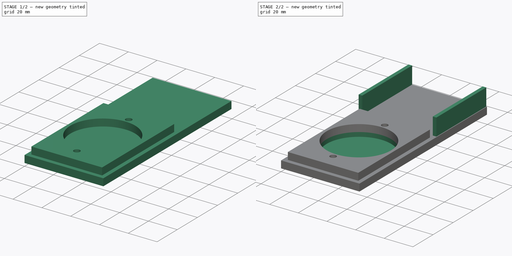
[diagram: build sequence overview — one tinted view per stage of 2, left to right]
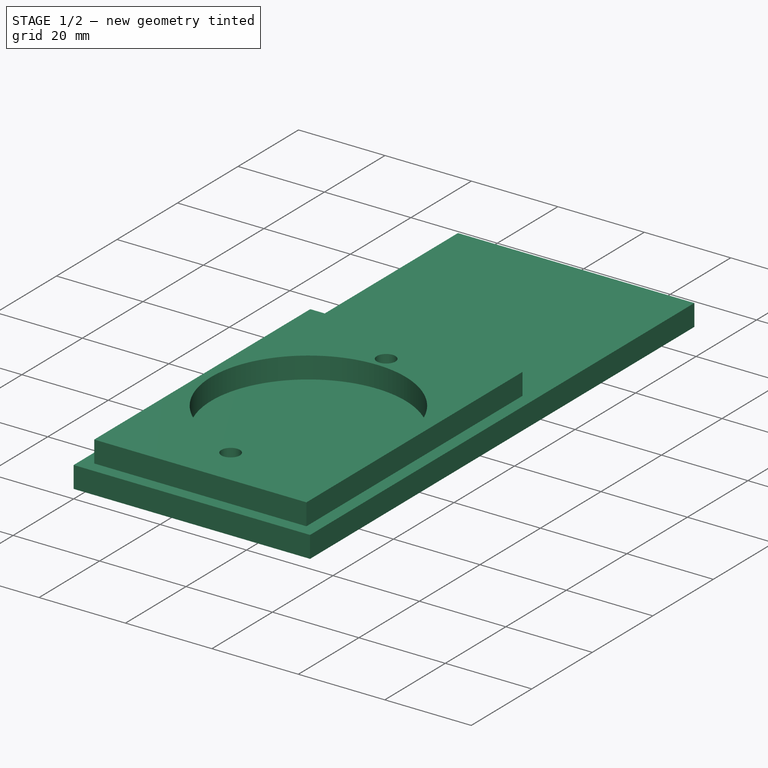
[diagram: stage 1 of 2 — iso view after this stage's code; geometry added in this stage tinted green]
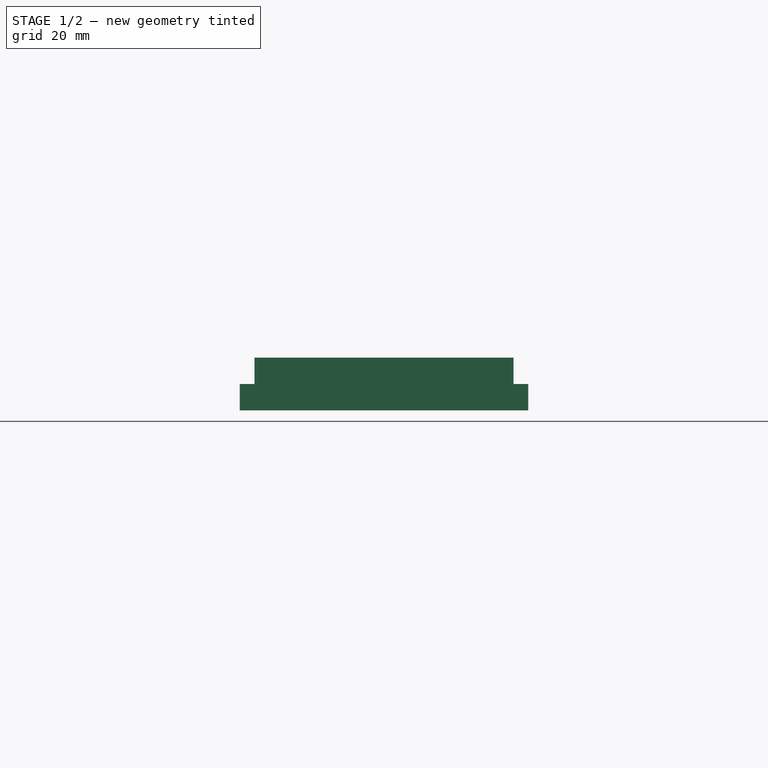
[diagram: stage 1 of 2 — front view after this stage's code; geometry added in this stage tinted green]
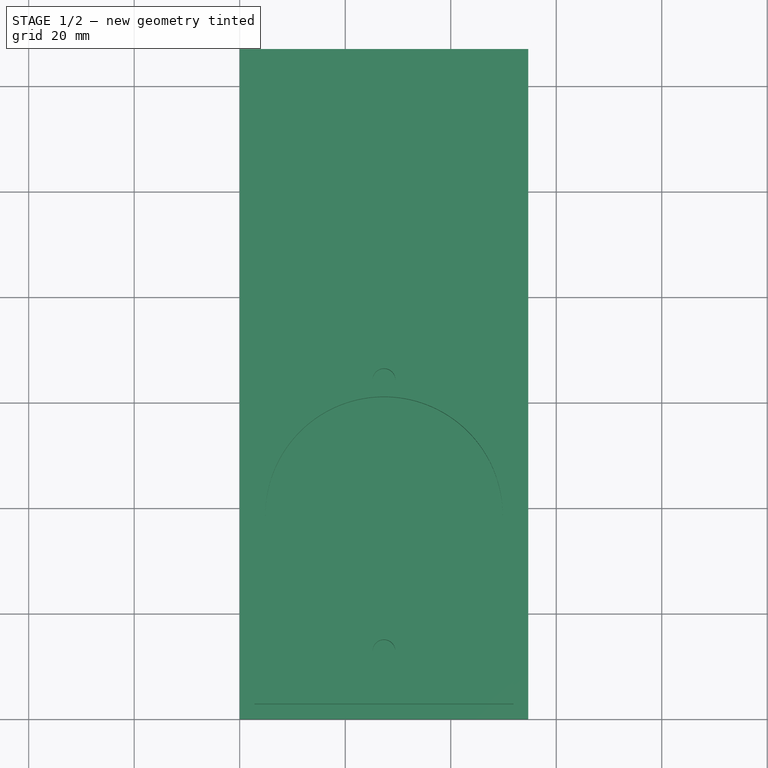
[diagram: stage 1 of 2 — top view after this stage's code; geometry added in this stage tinted green]
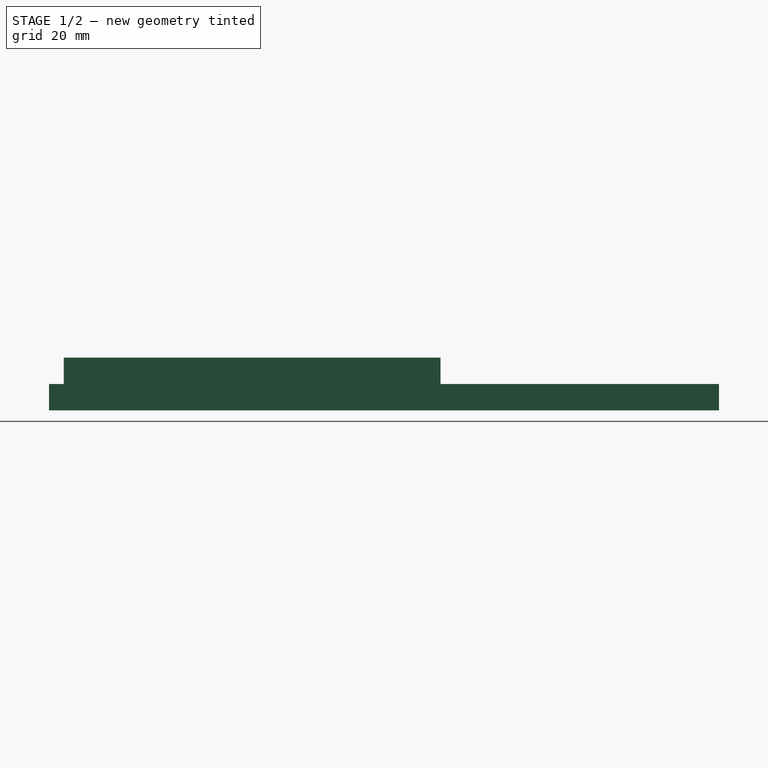
[diagram: stage 1 of 2 — right view after this stage's code; geometry added in this stage tinted green]
FCSTD DOCUMENT  (FreeCAD 0.21R33668 +7 (Git))
Label: speaker-enclosure-lid-L
License: All rights reserved
LicenseURL: http://en.wikipedia.org/wiki/All_rights_reserved
objects: Sketcher::SketchObject×4, PartDesign::Pad×3, PartDesign::Pocket×1, PartDesign::CoordinateSystem×1, PartDesign::Body×1, App::Part×1
note: 14 computed .brp shape members not serialized (recipe doc carries the construction recipe); baked Part::Feature solids carry a one-line shape summary decoded from their .brp
EXTERNAL_REF file=planB.FCStd obj=Spreadsheet

FEATURE [Sketcher::SketchObject] Sketch
  FullyConstrained = true
  MapMode = 5
  Support = -> [XY_Plane]
  sketch-geometry (4):
    g0: LineSegment StartX=0 StartY=0 StartZ=0 EndX=54.7 EndY=0 EndZ=0
    g1: LineSegment StartX=54.7 StartY=0 StartZ=0 EndX=54.7 EndY=127 EndZ=0
    g2: LineSegment StartX=54.7 StartY=127 StartZ=0 EndX=0 EndY=127 EndZ=0
    g3: LineSegment StartX=0 StartY=127 StartZ=0 EndX=0 EndY=0 EndZ=0
  constraints (11):
    c: Coincident(g0,g1)
    c: Coincident(g1,g2)
    c: Coincident(g2,g3)
    c: Coincident(g3,g0)
    c: Horizontal(g0)
    c: Horizontal(g2)
    c: Vertical(g1)
    c: Vertical(g3)
    c: Coincident(g0,g-1)
    c: DistanceX(g0,g0) = 54.7
    c: DistanceY(g3,g3) = 127
FEATURE [PartDesign::Pad] Pad
  Direction = (0,0,1)
  Length = 5
  Length2 = 10
  Profile = -> Sketch
  ReferenceAxis = -> Sketch [N_Axis]
  Reversed = true
  Type = 0
FEATURE [Sketcher::SketchObject] Sketch001
  FullyConstrained = false
  MapMode = 5
  Support = -> [XY_Plane]
  expr: Constraints[18] = planB#<<data>>.insert_diameter
  sketch-geometry (9):
    g0: LineSegment StartX=2.8 StartY=2.8 StartZ=0 EndX=51.9 EndY=2.8 EndZ=0
    g1: LineSegment StartX=51.9 StartY=2.8 StartZ=0 EndX=51.9 EndY=74.2 EndZ=0
    g2: LineSegment StartX=51.9 StartY=74.2 StartZ=0 EndX=2.8 EndY=74.2 EndZ=0
    g3: LineSegment StartX=2.8 StartY=74.2 StartZ=0 EndX=2.8 EndY=2.8 EndZ=0
    g4: Circle CenterX=27.35 CenterY=12.8239 CenterZ=0 NormalX=0 NormalY=0 NormalZ=1 AngleXU=0 Radius=2.15
    g5: Circle CenterX=27.35 CenterY=64.2239 CenterZ=0 NormalX=0 NormalY=0 NormalZ=1 AngleXU=0 Radius=2.15
    g6: LineSegment StartX=27.35 StartY=12.8239 StartZ=0 EndX=27.35 EndY=64.2239 EndZ=0
    g7: GeomPoint X=27.35 Y=38.5239 Z=0
    g8: Circle CenterX=27.35 CenterY=38.5239 CenterZ=0 NormalX=0 NormalY=0 NormalZ=1 AngleXU=0 Radius=22.5
  constraints (21):
    c: Coincident(g0,g1)
    c: Coincident(g1,g2)
    c: Coincident(g2,g3)
    c: Coincident(g3,g0)
    c: Horizontal(g0)
    c: Horizontal(g2)
    c: Vertical(g1)
    c: Vertical(g3)
    c: Coincident(g6,g4)
    c: Coincident(g6,g5)
    c: DistanceY(g6,g6) = 51.4
    c: DistanceX(g4) = 27.35
    c: DistanceX(g0) = 2.8
    c: DistanceY(g0) = 2.8
    c: Symmetric(g4,g5,g7)
    c: Equal(g4,g5)
    c: Coincident(g8,g7)
    c: Diameter(g8) = 45
    c: Diameter(g5) = 4.3
    c: DistanceY(g2) = 74.2
    c: Symmetric(g0,g0,g6)
FEATURE [PartDesign::Pad] Pad001
  BaseFeature = -> Pad
  Direction = (0,0,1)
  Length = 5
  Length2 = 10
  Profile = -> Sketch001
  ReferenceAxis = -> Sketch001 [N_Axis]
  Type = 0
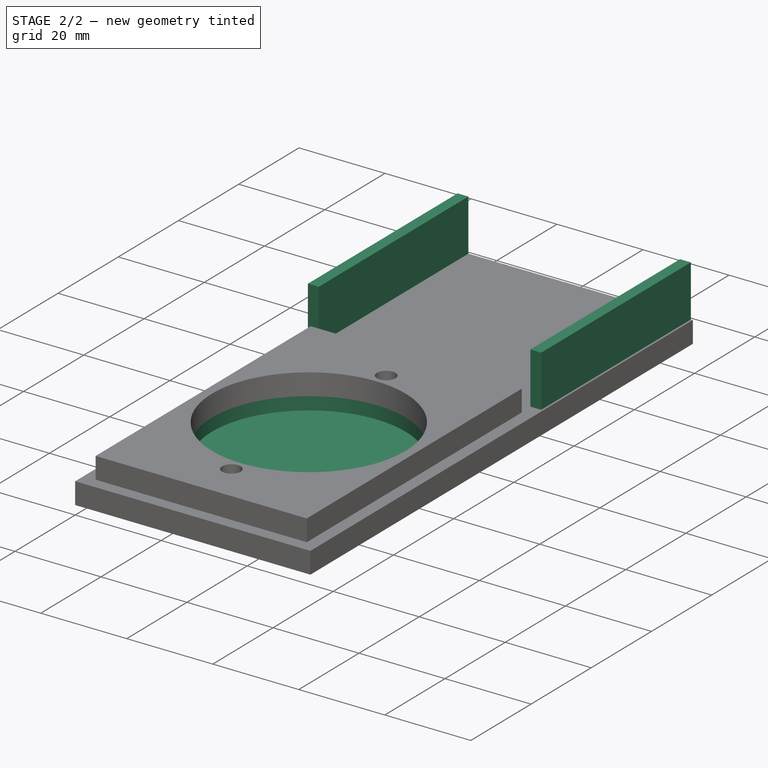
[diagram: stage 2 of 2 — iso view after this stage's code; geometry added in this stage tinted green]
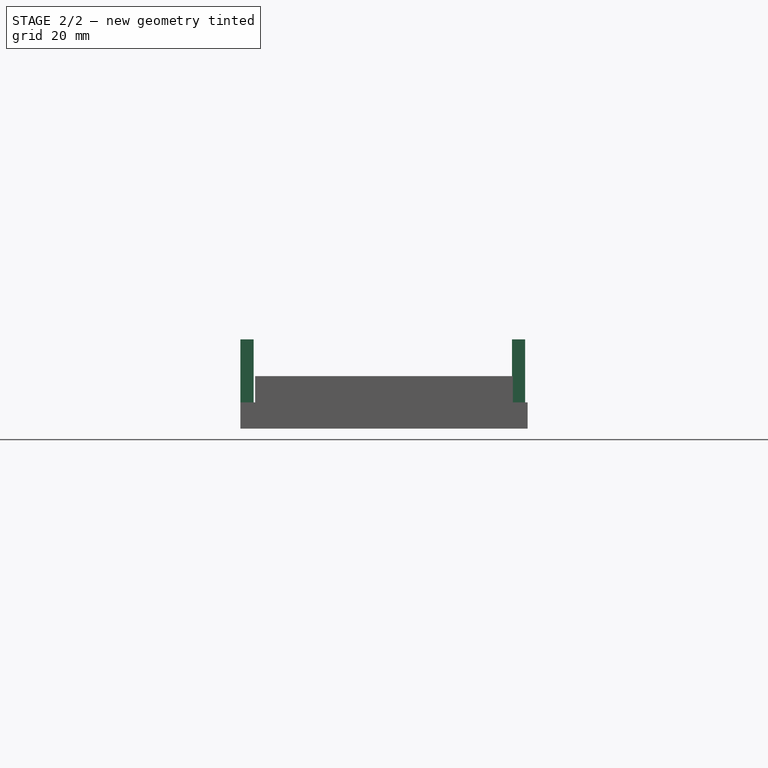
[diagram: stage 2 of 2 — front view after this stage's code; geometry added in this stage tinted green]
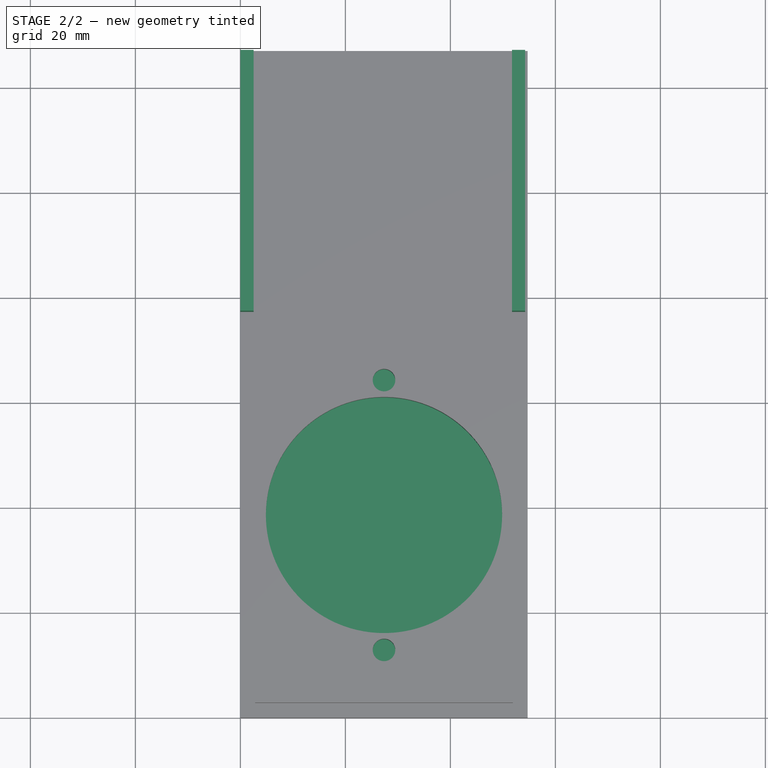
[diagram: stage 2 of 2 — top view after this stage's code; geometry added in this stage tinted green]
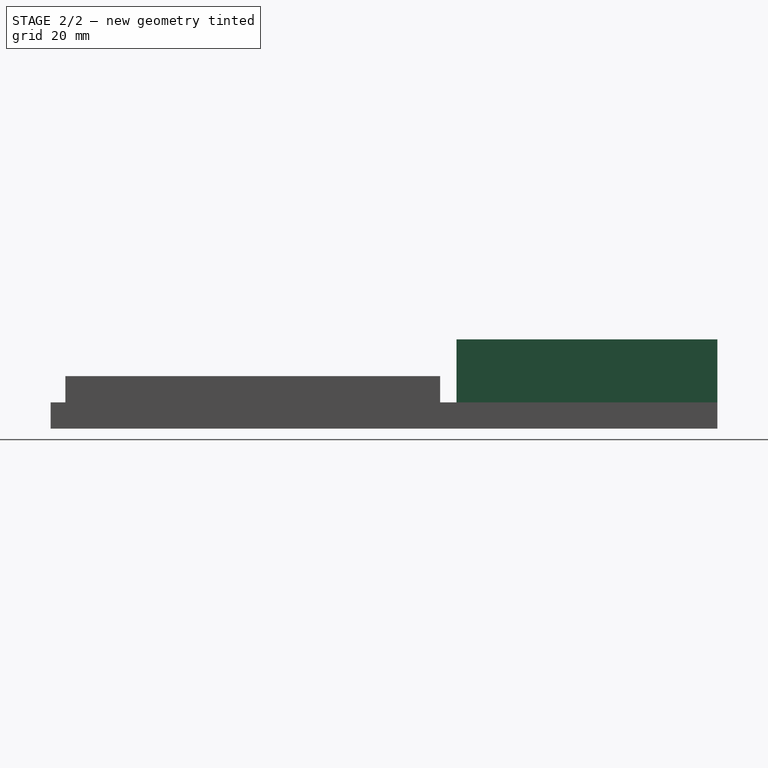
[diagram: stage 2 of 2 — right view after this stage's code; geometry added in this stage tinted green]
FEATURE [Sketcher::SketchObject] Sketch002
  FullyConstrained = false
  MapMode = 5
  Support = -> [XY_Plane]
  expr: Constraints[18] = planB#<<data>>.insert_diameter
  sketch-geometry (9):
    g0: LineSegment StartX=2.8 StartY=2.8 StartZ=0 EndX=51.9 EndY=2.8 EndZ=0
    g1: LineSegment StartX=51.9 StartY=2.8 StartZ=0 EndX=51.9 EndY=74.2 EndZ=0
    g2: LineSegment StartX=51.9 StartY=74.2 StartZ=0 EndX=2.8 EndY=74.2 EndZ=0
    g3: LineSegment StartX=2.8 StartY=74.2 StartZ=0 EndX=2.8 EndY=2.8 EndZ=0
    g4: Circle CenterX=27.35 CenterY=12.8239 CenterZ=0 NormalX=0 NormalY=0 NormalZ=1 AngleXU=0 Radius=2.15
    g5: Circle CenterX=27.35 CenterY=64.2239 CenterZ=0 NormalX=0 NormalY=0 NormalZ=1 AngleXU=0 Radius=2.15
    g6: LineSegment StartX=27.35 StartY=12.8239 StartZ=0 EndX=27.35 EndY=64.2239 EndZ=0
    g7: GeomPoint X=27.35 Y=38.5239 Z=0
    g8: Circle CenterX=27.35 CenterY=38.5239 CenterZ=0 NormalX=0 NormalY=0 NormalZ=1 AngleXU=0 Radius=22.5
  constraints (21):
    c: Coincident(g0,g1)
    c: Coincident(g1,g2)
    c: Coincident(g2,g3)
    c: Coincident(g3,g0)
    c: Horizontal(g0)
    c: Horizontal(g2)
    c: Vertical(g1)
    c: Vertical(g3)
    c: Coincident(g6,g4)
    c: Coincident(g6,g5)
    c: DistanceY(g6,g6) = 51.4
    c: DistanceX(g4) = 27.35
    c: DistanceX(g0) = 2.8
    c: DistanceY(g0) = 2.8
    c: Symmetric(g4,g5,g7)
    c: Equal(g4,g5)
    c: Coincident(g8,g7)
    c: Diameter(g8) = 45
    c: Diameter(g5) = 4.3
    c: DistanceY(g2) = 74.2
    c: Symmetric(g0,g0,g6)
FEATURE [PartDesign::Pocket] Pocket
  BaseFeature = -> Pad001
  Direction = (0,0,-1)
  Length = 3
  Length2 = 5
  Profile = -> Sketch002
  ReferenceAxis = -> Sketch002 [N_Axis]
  Type = 0
FEATURE [PartDesign::CoordinateSystem] LCS_0
  AttacherType = Attacher::AttachEngine3D
  MapMode = 2
  Support = -> [X_Axis001]
FEATURE [Sketcher::SketchObject] Sketch003
  FullyConstrained = false
  MapMode = 5
  Support = -> [XY_Plane]
  sketch-geometry (8):
    g0: LineSegment StartX=0 StartY=77.3 StartZ=0 EndX=2.51 EndY=77.3 EndZ=0
    g1: LineSegment StartX=2.51 StartY=77.3 StartZ=0 EndX=2.51 EndY=127 EndZ=0
    g2: LineSegment StartX=2.51 StartY=127 StartZ=0 EndX=0 EndY=127 EndZ=0
    g3: LineSegment StartX=0 StartY=127 StartZ=0 EndX=0 EndY=77.3 EndZ=0
    g4: LineSegment StartX=51.7245 StartY=127 StartZ=0 EndX=54.2345 EndY=127 EndZ=0
    g5: LineSegment StartX=54.2345 StartY=127 StartZ=0 EndX=54.2345 EndY=77.3 EndZ=0
    g6: LineSegment StartX=54.2345 StartY=77.3 StartZ=0 EndX=51.7245 EndY=77.3 EndZ=0
    g7: LineSegment StartX=51.7245 StartY=77.3 StartZ=0 EndX=51.7245 EndY=127 EndZ=0
  constraints (23):
    c: Coincident(g0,g1)
    c: Coincident(g1,g2)
    c: Coincident(g2,g3)
    c: Coincident(g3,g0)
    c: Horizontal(g0)
    c: Horizontal(g2)
    c: Vertical(g1)
    c: Vertical(g3)
    c: PointOnObject(g0,g-2)
    c: Coincident(g4,g5)
    c: Coincident(g5,g6)
    c: Coincident(g6,g7)
    c: Coincident(g7,g4)
    c: Horizontal(g4)
    c: Horizontal(g6)
    c: Vertical(g5)
    c: Vertical(g7)
    c: PointOnObject(g0,g6)
    c: PointOnObject(g1,g4)
    c: Equal(g2,g4)
    c: DistanceX(g0,g0) = 2.51
    c: DistanceY(g0) = 77.3
    c: DistanceY(g1) = 127
FEATURE [PartDesign::Pad] Pad002
  BaseFeature = -> Pocket
  Direction = (0,0,1)
  Length = 12
  Length2 = 10
  Profile = -> Sketch003
  ReferenceAxis = -> Sketch003 [N_Axis]
  Type = 0
FEATURE [PartDesign::Body] Body
  Group = -> [Sketch,Pad,Sketch001,Pad001,Sketch002,Pocket,Sketch003,Pad002]
  Origin = -> Origin
  Tip = -> Pad002
FEATURE [App::Part] enc_lid_L  label="enc_lid__L"
  Group = -> [LCS_0,Body]
  Origin = -> Origin001
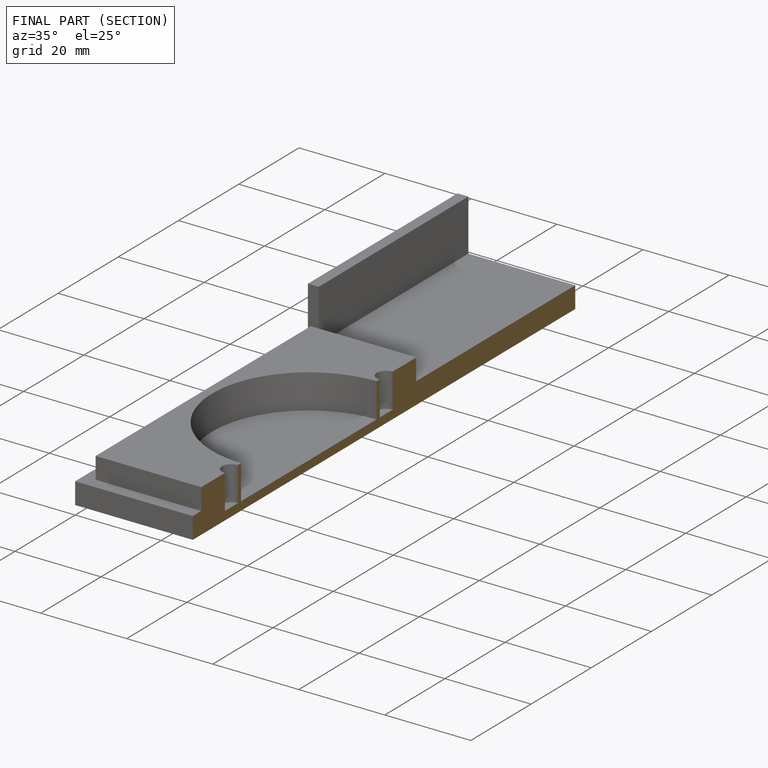
[diagram: finished part — half-section view (interior)]
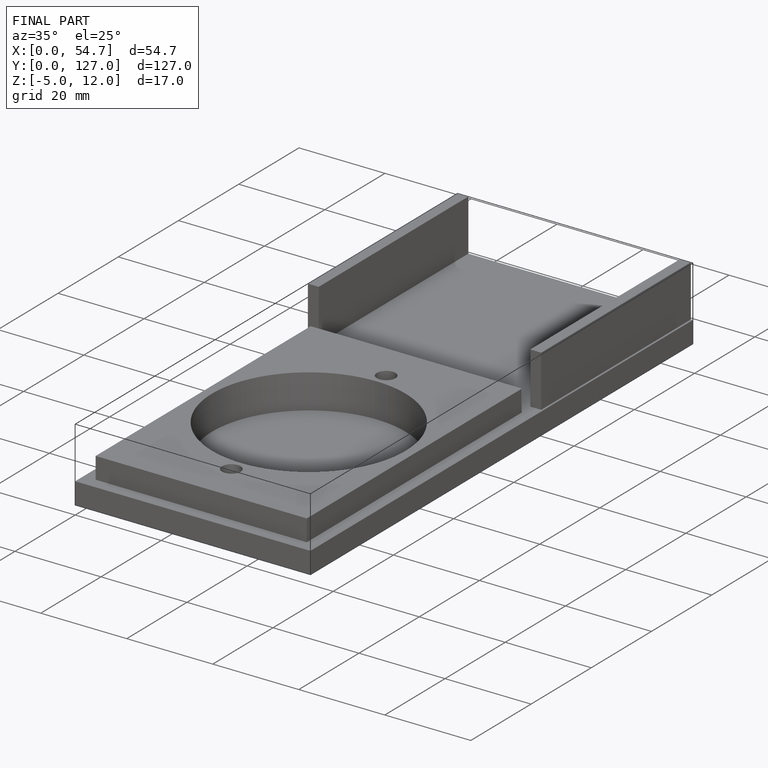
[diagram: finished part — iso view with bounding-box wireframe]
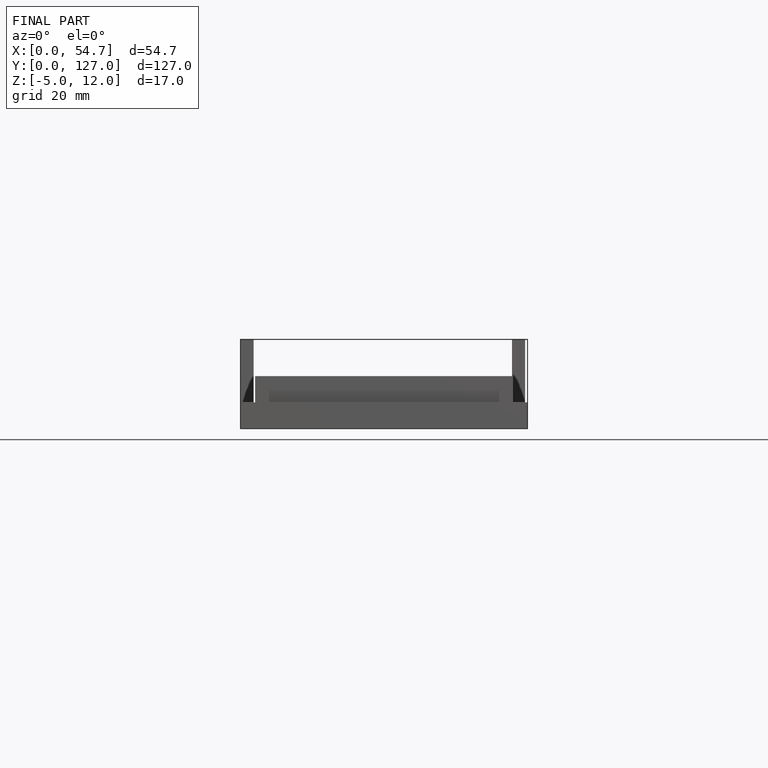
[diagram: finished part — front view with bounding-box wireframe]
